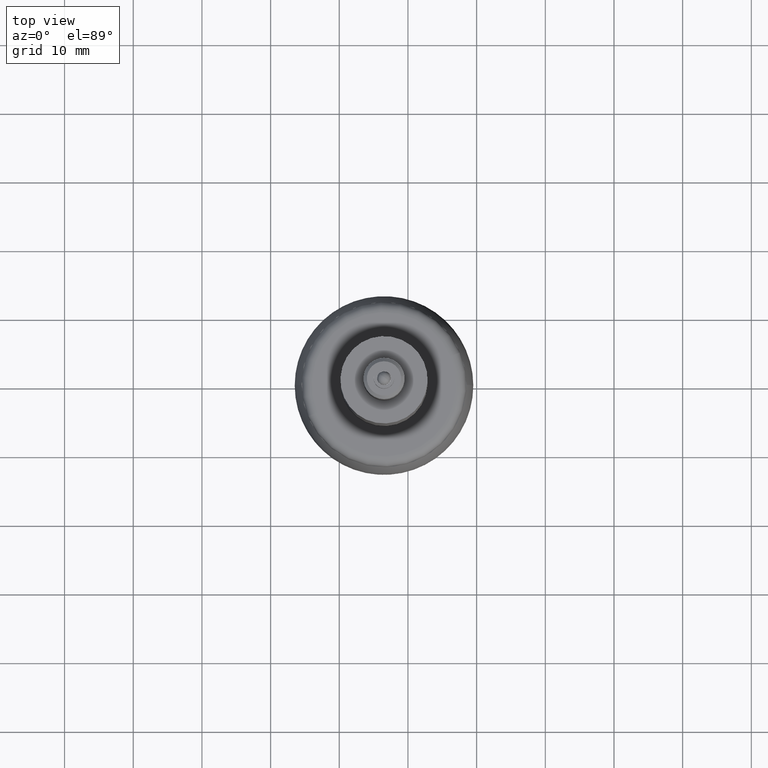
[diagram: clean part render]
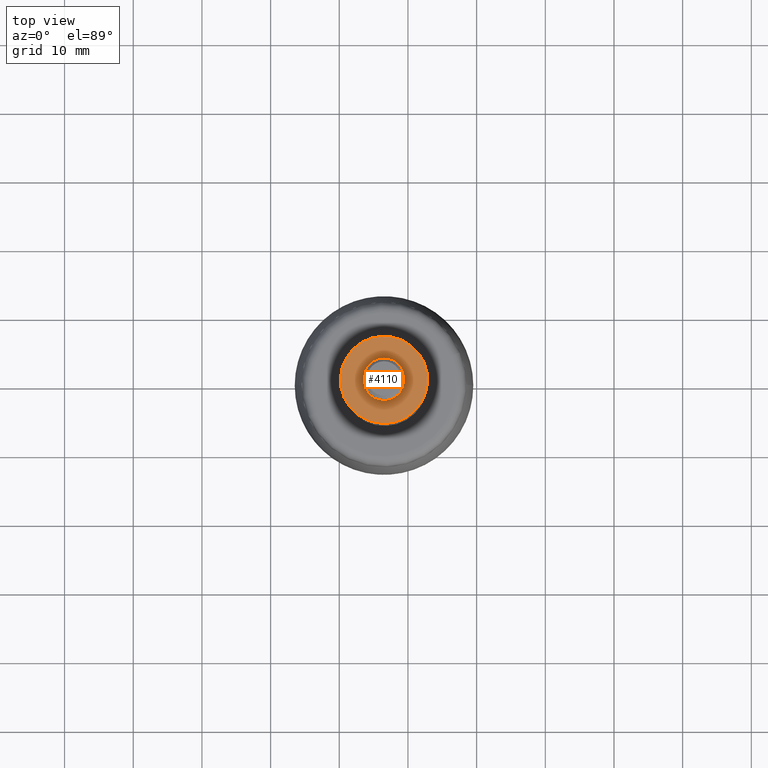
[diagram: same view with one face highlighted and labeled with its STEP entity id]
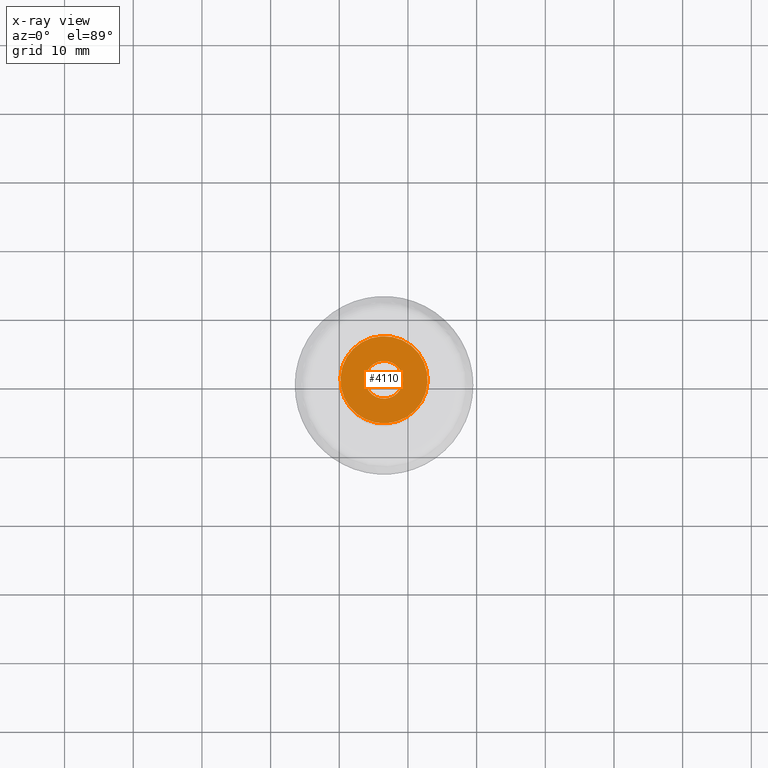
[diagram: x-ray of the same camera — body ghosted, the highlighted face saturated]
A machine part, top view. The second image highlights one B-rep face of the part: STEP entity #4110.
The next image is the same camera in x-ray: the body ghosted, the highlighted face saturated — about 0% of this face is hidden behind the body in this view.
In plain terms, the highlighted planar face has unit normal (0, 0, 1).
Its self-contained STEP definition (entity closure, byte-faithful):
#4036 = VERTEX_POINT ( 'NONE', #16997 ) ;
#4050 = ORIENTED_EDGE ( 'NONE', *, *, #4088, .T. ) ;
#4056 = ORIENTED_EDGE ( 'NONE', *, *, #4093, .T. ) ;
#4079 = VERTEX_POINT ( 'NONE', #17129 ) ;
#4080 = EDGE_CURVE ( 'NONE', #4036, #4081, #17178, .T. ) ;
#4081 = VERTEX_POINT ( 'NONE', #17173 ) ;
#4085 = VERTEX_POINT ( 'NONE', #17202 ) ;
#4088 = EDGE_CURVE ( 'NONE', #4085, #4079, #17235, .T. ) ;
#4093 = EDGE_CURVE ( 'NONE', #4079, #4085, #17222, .T. ) ;
#4104 = ORIENTED_EDGE ( 'NONE', *, *, #4105, .F. ) ;
#4105 = EDGE_CURVE ( 'NONE', #4081, #4036, #17261, .T. ) ;
#4106 = EDGE_LOOP ( 'NONE', ( #4050, #4056 ) ) ;
#4110 = ADVANCED_FACE ( 'NONE', ( #17255, #17254 ), #17292, .T. ) ;
#4111 = EDGE_LOOP ( 'NONE', ( #4112, #4104 ) ) ;
#4112 = ORIENTED_EDGE ( 'NONE', *, *, #4080, .F. ) ;
#16997 = CARTESIAN_POINT ( 'NONE',  ( -0.03070972097102647400, 0.01247040447657593900, 0.7031054715612815600 ) ) ;
#17129 = CARTESIAN_POINT ( 'NONE',  ( -0.3833275499507332600, -0.05090485408030698300, 0.7031054715612815600 ) ) ;
#17173 = CARTESIAN_POINT ( 'NONE',  ( -0.2438303868378821600, -0.02583332322263899900, 0.7031054715612815600 ) ) ;
#17174 = DIRECTION ( 'NONE',  ( 0.9842299841851153100, 0.1768935788291017800, 0.0000000000000000000 ) ) ;
#17175 = DIRECTION ( 'NONE',  ( 0.0000000000000000000, 0.0000000000000000000, 1.000000000000000000 ) ) ;
#17176 = CARTESIAN_POINT ( 'NONE',  ( -0.1372700539044543200, -0.006681459373031536900, 0.7031054715612815600 ) ) ;
#17177 = AXIS2_PLACEMENT_3D ( 'NONE', #17176, #17175, #17174 ) ;
#17178 = CIRCLE ( 'NONE', #17177, 0.1082677165354330700 ) ;
#17202 = CARTESIAN_POINT ( 'NONE',  ( 0.1087874421418246100, 0.03754193533424392300, 0.7031054715612815600 ) ) ;
#17218 = DIRECTION ( 'NONE',  ( 0.9842299841851152000, 0.1768935788291017600, 0.0000000000000000000 ) ) ;
#17219 = DIRECTION ( 'NONE',  ( 0.0000000000000000000, 0.0000000000000000000, 1.000000000000000000 ) ) ;
#17220 = CARTESIAN_POINT ( 'NONE',  ( -0.1372700539044543200, -0.006681459373031536900, 0.7031054715612815600 ) ) ;
#17221 = AXIS2_PLACEMENT_3D ( 'NONE', #17220, #17219, #17218 ) ;
#17222 = CIRCLE ( 'NONE', #17221, 0.2500000000000001100 ) ;
#17231 = DIRECTION ( 'NONE',  ( 0.9842299841851152000, 0.1768935788291017600, 0.0000000000000000000 ) ) ;
#17232 = DIRECTION ( 'NONE',  ( 0.0000000000000000000, 0.0000000000000000000, 1.000000000000000000 ) ) ;
#17233 = CARTESIAN_POINT ( 'NONE',  ( -0.1372700539044543200, -0.006681459373031536900, 0.7031054715612815600 ) ) ;
#17234 = AXIS2_PLACEMENT_3D ( 'NONE', #17233, #17232, #17231 ) ;
#17235 = CIRCLE ( 'NONE', #17234, 0.2500000000000001100 ) ;
#17254 = FACE_OUTER_BOUND ( 'NONE', #4106, .T. ) ;
#17255 = FACE_BOUND ( 'NONE', #4111, .T. ) ;
#17257 = DIRECTION ( 'NONE',  ( 0.9842299841851153100, 0.1768935788291017800, 0.0000000000000000000 ) ) ;
#17258 = DIRECTION ( 'NONE',  ( 0.0000000000000000000, 0.0000000000000000000, 1.000000000000000000 ) ) ;
#17259 = CARTESIAN_POINT ( 'NONE',  ( -0.1372700539044543200, -0.006681459373031536900, 0.7031054715612815600 ) ) ;
#17260 = AXIS2_PLACEMENT_3D ( 'NONE', #17259, #17258, #17257 ) ;
#17261 = CIRCLE ( 'NONE', #17260, 0.1082677165354330700 ) ;
#17287 = DIRECTION ( 'NONE',  ( 0.9842299841851153100, 0.1768935788291017800, 0.0000000000000000000 ) ) ;
#17288 = DIRECTION ( 'NONE',  ( 0.0000000000000000000, 0.0000000000000000000, 1.000000000000000000 ) ) ;
#17289 = CARTESIAN_POINT ( 'NONE',  ( -0.1372700539044543200, -0.006681459373031536900, 0.7031054715612815600 ) ) ;
#17290 = AXIS2_PLACEMENT_3D ( 'NONE', #17289, #17288, #17287 ) ;
#17292 = PLANE ( 'NONE',  #17290 ) ;